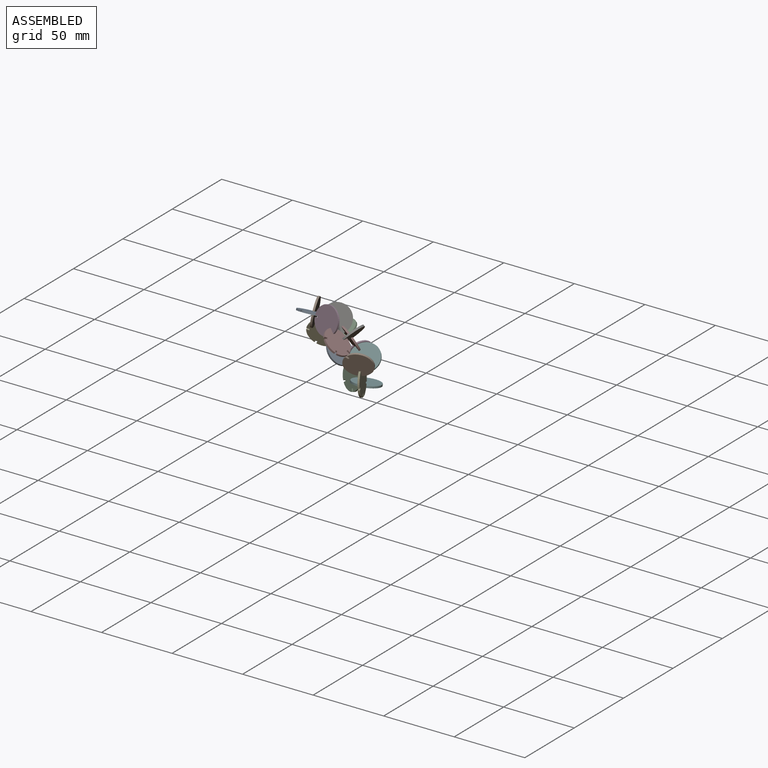
[diagram: assembled view]
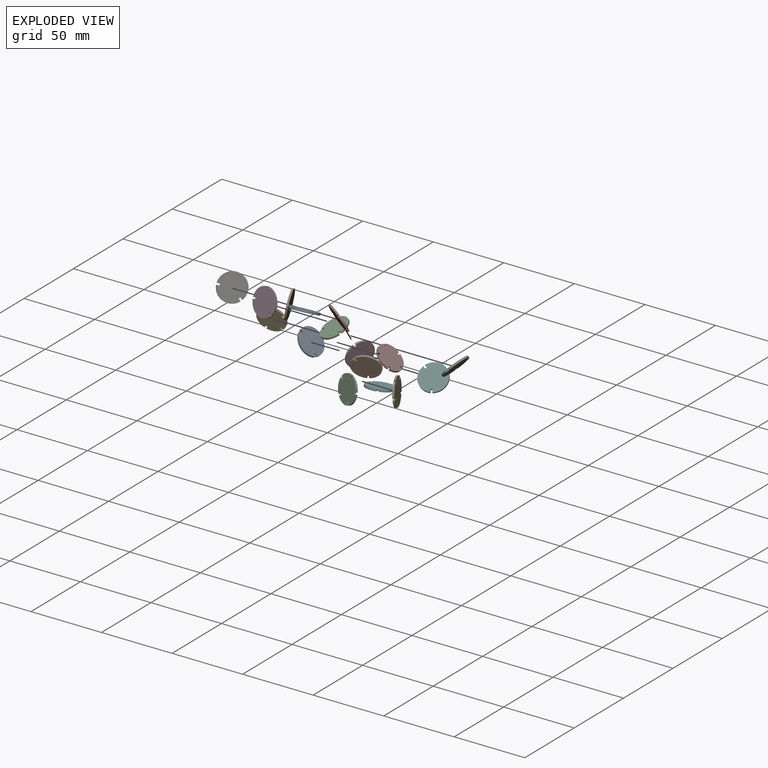
[diagram: exploded view]
GUIDED TOUR — MATED ASSEMBLY (Onshape document 2f8d755c840fef2c85344a46, AutoMate assembly 2f8d755c840fef2c85344a46_6ec1428fb7d1c9a13b4b133c_8fbc645c9785d27caae348df_default)

This assembly has 16 components, labeled P0..P15 below (a component is one placed occurrence of a part; the same part can appear more than once), held together by 3 mates. A mate is a constraint between two components; its type names the relative motion it leaves free:
  FASTENED — locks the two components together rigidly (no relative motion).
Axis/direction vectors are unit vectors and 'through' points are millimeter coordinates, both in the assembly's world frame.

MATES
  1. FASTENED "Fastened 1": P10 <-> P3, direction (0.285, 0.087, 0.955) through (28.39, -11.25, 0.03) mm
  2. FASTENED "Fastened 2": P3 <-> P7, direction (-0.047, -0.535, 0.844) through (30.17, -14.59, 13.46) mm
  3. FASTENED "Fastened 3": P10 <-> P5, direction (0.921, -0.380, 0.084) through (33.15, -14.74, -6.48) mm

ASSEMBLY ORDER
  1. P7 — the base component [order heuristic]
  2. P0 — core [order heuristic]
  3. P1 — core [order heuristic]
  4. P2 — core [order heuristic]
  5. P4 — core [order heuristic]
  6. P6 — core [order heuristic]
  7. P8 — core [order heuristic]
  8. P9 — core [order heuristic]
  9. P11 — core [order heuristic]
  10. P12 — core [order heuristic]
  11. P13 — core [order heuristic]
  12. P14 — core [order heuristic]
  13. P15 — core [order heuristic]
  14. P3 [order verified]
  15. P10 [order verified]
  16. P5 [order verified]
(P3, P10 verified with a relaxed clearance tolerance: the source model stores slight part interference there.)
Order-tag legend:
  [order verified] — this step's position reverses a verified removal order: the component was checked to insert without passing through the ones already placed.
  [order heuristic] — the first 13 components form the assembly's core: parts whose collision-free extraction could not be verified, listed in mate-graph order.

Of the 16 components, 16 carry the full construction recipe — the FeatureScript program that regenerates the part's solid from scratch; the rest are supplied as boundary geometry only.
Because this assembly has more than 12 components, the tour below covers the 12 most significant ones individually (every recipe-attached component first, then the largest by part volume), in assembly order; the remaining 4 are summarized together in a grouped section at the end.
Each toured component is shown spotlighted twice — in the assembled view, then in the exploded view, where a leader line traces a displaced component back to its assembled socket (saturated green if recipe-attached, orange if geometry-only; every other component desaturated gray) — followed by its recipe or geometry summary and the mates that hold it.
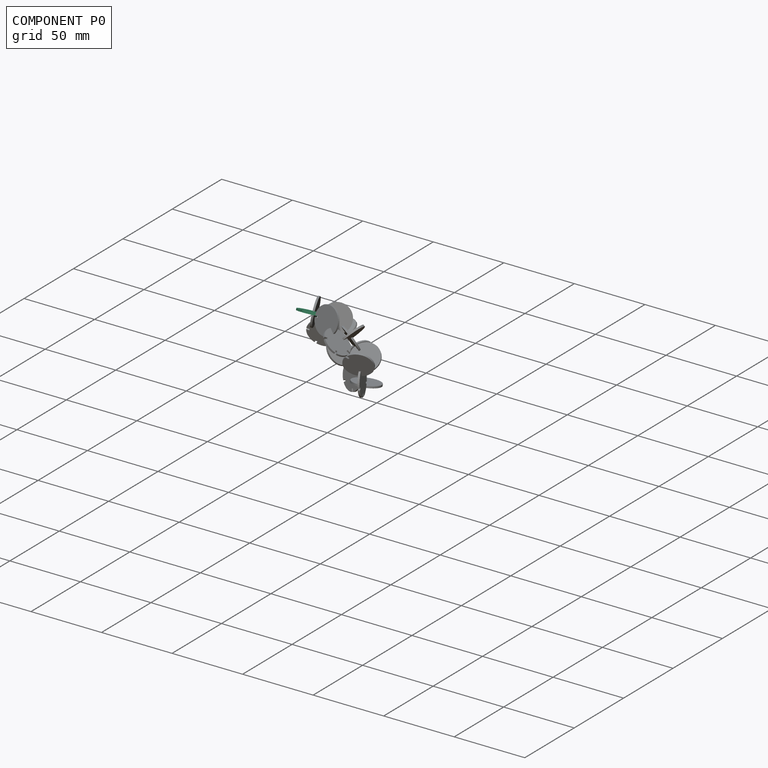
[diagram: component P0 — assembled]
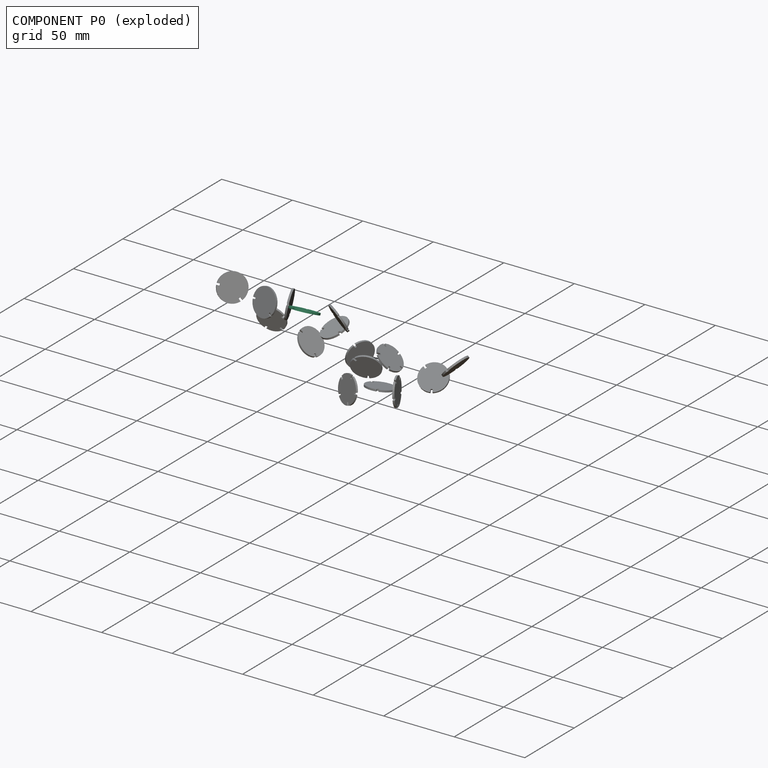
[diagram: component P0 — exploded]
COMPONENT P0 — recipe-attached (CADFS 00611529, mesh-verified: the recipe's output STEP matches this component's geometry to below the mesh-comparison resolution (tessellation chordal tolerance ~0.0404 mm)).
Held by: no mates (free).
Construction recipe (FeatureScript — the CAD program that rebuilds this solid; sketch coordinates are in the units given by the * unit suffixes, e.g. mm):

FeatureScript 1511;
import(path : "onshape/std/geometry.fs", version : "1511.0");
import(path : "onshape/std/common.fs", version : "1511.0");
const mm = millimeter;
const VERTEX = EntityType.VERTEX;
const EDGE = EntityType.EDGE;
const FACE = EntityType.FACE;
const BODY = EntityType.BODY;
function v(x, y){return vector(x, y);}
function OD(order){return orderDisambiguation(order);}
function OSD(set){return originalSetDisambiguation(set);}
function TD(topology){return topologyDisambiguation(topology);}
function TDD(query){return trueDependencyDisambiguation(query);}
function sQuery(a, b, c) {return sketchEntityQuery(a, b, c);}

annotation { "Feature Type Name" : "Feature", "Feature Type Description" : "" }
export const myFeature = defineFeature(function(context is Context, id is Id, definition is map)
    precondition{}
    {
        {
            var Q0;
            Q0=qCreatedBy(makeId("Front.planeOp"),FACE);
            var sketch = newSketch(context, id + "F0", { "sketchPlane" : qUnion([Q0])});
            skArc(sketch, "E0", {"start": v(-0.64, 9.5) * mm, "mid": v(-5.6, 7.7) * mm, "end": v(-8.84, 3.54) * mm});
            skLineSegment(sketch, "E1.top", {"start": v(-0.64, 7.47) * mm, "end": v(0.64, 7.47) * mm});
            skLineSegment(sketch, "E1.left", {"start": v(-0.64, 9.5) * mm, "end": v(-0.64, 7.47) * mm});
            skLineSegment(sketch, "E1.right", {"start": v(0.64, 9.5) * mm, "end": v(0.64, 7.47) * mm});
            skLineSegment(sketch, "E2.1.0", {"start": v(-8.84, 3.54) * mm, "end": v(-6.9, 2.91) * mm});
            skLineSegment(sketch, "E2.1.1", {"start": v(-7.3, 1.7) * mm, "end": v(-6.9, 2.91) * mm});
            skLineSegment(sketch, "E2.1.2", {"start": v(-9.23, 2.33) * mm, "end": v(-7.3, 1.7) * mm});
            skLineSegment(sketch, "E2.2.0", {"start": v(-6.1, -7.32) * mm, "end": v(-4.9, -5.67) * mm});
            skLineSegment(sketch, "E2.2.1", {"start": v(-3.88, -6.42) * mm, "end": v(-4.9, -5.67) * mm});
            skLineSegment(sketch, "E2.2.2", {"start": v(-5.07, -8.06) * mm, "end": v(-3.88, -6.42) * mm});
            skLineSegment(sketch, "E2.3.0", {"start": v(5.07, -8.06) * mm, "end": v(3.88, -6.42) * mm});
            skLineSegment(sketch, "E2.3.1", {"start": v(4.9, -5.67) * mm, "end": v(3.88, -6.42) * mm});
            skLineSegment(sketch, "E2.3.2", {"start": v(6.1, -7.32) * mm, "end": v(4.9, -5.67) * mm});
            skLineSegment(sketch, "E2.4.0", {"start": v(9.23, 2.33) * mm, "end": v(7.3, 1.7) * mm});
            skLineSegment(sketch, "E2.4.1", {"start": v(6.9, 2.91) * mm, "end": v(7.3, 1.7) * mm});
            skLineSegment(sketch, "E2.4.2", {"start": v(8.84, 3.54) * mm, "end": v(6.9, 2.91) * mm});
            skArc(sketch, "E3.trimOffspring", {"start": v(8.84, 3.54) * mm, "mid": v(5.6, 7.7) * mm, "end": v(0.63, 9.5) * mm});
            skArc(sketch, "E4.trimOffspring", {"start": v(6.1, -7.32) * mm, "mid": v(9.06, -2.94) * mm, "end": v(9.23, 2.33) * mm});
            skArc(sketch, "E5.trimOffspring", {"start": v(-5.07, -8.06) * mm, "mid": v(0, -9.53) * mm, "end": v(5.07, -8.06) * mm});
            skArc(sketch, "E6.trimOffspring", {"start": v(-9.23, 2.33) * mm, "mid": v(-9.06, -2.94) * mm, "end": v(-6.1, -7.32) * mm});
            skSolve(sketch);
        }
        {
            var Q0;
            Q0=makeQuery(id+"F0.imprint","IMPRINT",FACE,{"disambiguationData":[TD([[makeQuery(id+"F0.imprint","IMPRINT",EDGE,{"derivedFrom":sQuery(id+"F0.wireOp",EDGE,"E0")}),1.0]])]});
            extrude(context, id + "F1", {"entities" : qUnion([Q0]), "endBound" : BoundingType.SYMMETRIC, "depth" : 1.27 * mm, "offsetDistance" : 25.4 * mm});
        }
    });
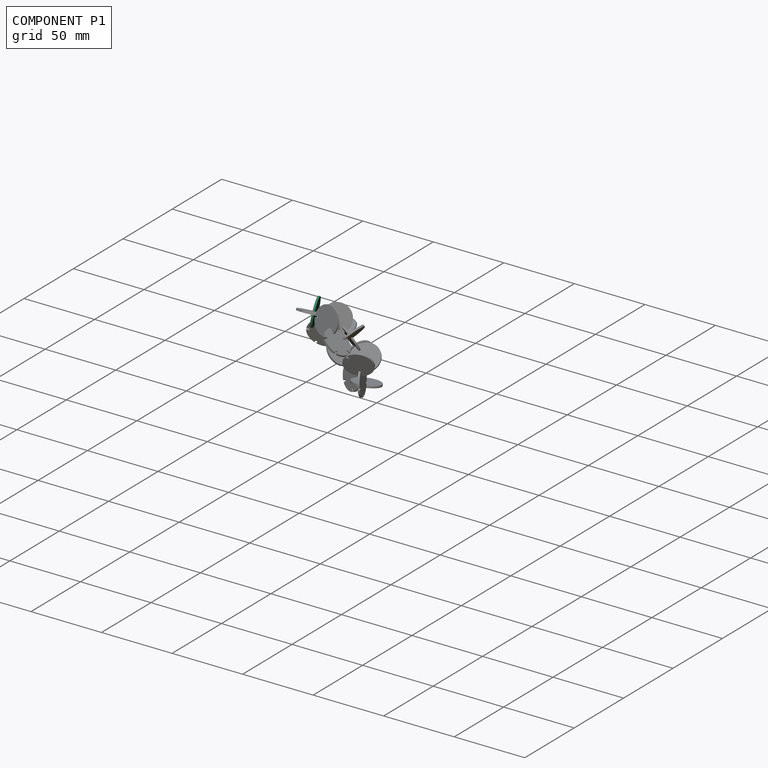
[diagram: component P1 — assembled]
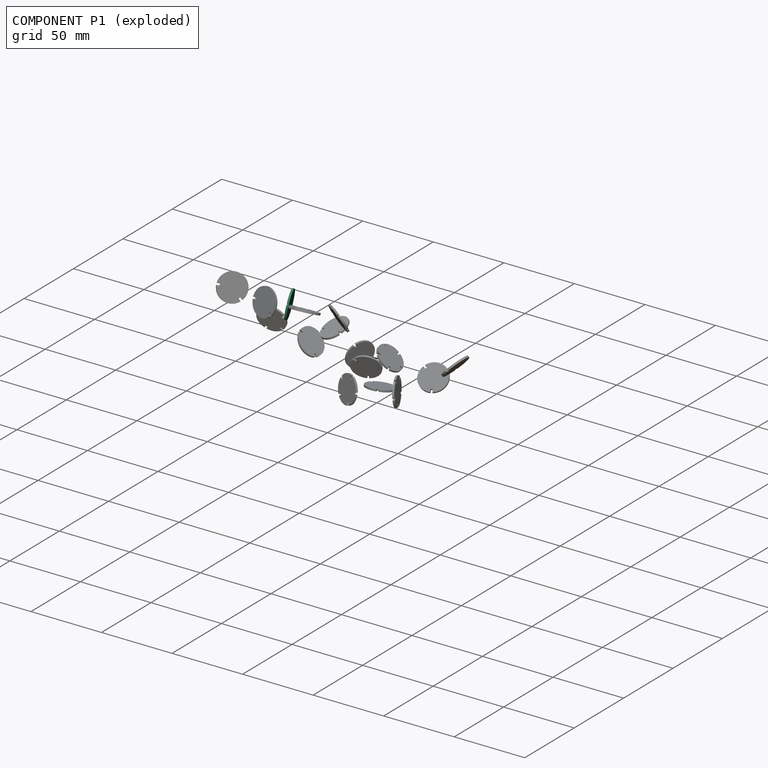
[diagram: component P1 — exploded]
COMPONENT P1 — recipe-attached (CADFS 00611528, mesh-verified: the recipe's output STEP matches this component's geometry to below the mesh-comparison resolution (tessellation chordal tolerance ~0.0404 mm)).
Held by: no mates (free).
Construction recipe (FeatureScript — the CAD program that rebuilds this solid; sketch coordinates are in the units given by the * unit suffixes, e.g. mm):

FeatureScript 1511;
import(path : "onshape/std/geometry.fs", version : "1511.0");
import(path : "onshape/std/common.fs", version : "1511.0");
const mm = millimeter;
const VERTEX = EntityType.VERTEX;
const EDGE = EntityType.EDGE;
const FACE = EntityType.FACE;
const BODY = EntityType.BODY;
function v(x, y){return vector(x, y);}
function OD(order){return orderDisambiguation(order);}
function OSD(set){return originalSetDisambiguation(set);}
function TD(topology){return topologyDisambiguation(topology);}
function TDD(query){return trueDependencyDisambiguation(query);}
function sQuery(a, b, c) {return sketchEntityQuery(a, b, c);}

annotation { "Feature Type Name" : "Feature", "Feature Type Description" : "" }
export const myFeature = defineFeature(function(context is Context, id is Id, definition is map)
    precondition{}
    {
        {
            var Q0;
            Q0=qCreatedBy(makeId("Front.planeOp"),FACE);
            var sketch = newSketch(context, id + "F0", { "sketchPlane" : qUnion([Q0])});
            skArc(sketch, "E0", {"start": v(6.8, -6.66) * mm, "mid": v(8.9, 3.4) * mm, "end": v(0.64, 9.5) * mm});
            skLineSegment(sketch, "E1.top", {"start": v(-0.64, 7.47) * mm, "end": v(0.64, 7.47) * mm});
            skLineSegment(sketch, "E1.left", {"start": v(-0.64, 9.5) * mm, "end": v(-0.64, 7.47) * mm});
            skLineSegment(sketch, "E1.right", {"start": v(0.64, 9.5) * mm, "end": v(0.64, 7.47) * mm});
            skLineSegment(sketch, "E2.1.0", {"start": v(5.86, -7.5) * mm, "end": v(4.5, -6) * mm});
            skLineSegment(sketch, "E2.1.1", {"start": v(5.45, -5.15) * mm, "end": v(4.5, -6) * mm});
            skLineSegment(sketch, "E2.1.2", {"start": v(6.8, -6.66) * mm, "end": v(5.45, -5.15) * mm});
            skLineSegment(sketch, "E2.anchor1", {"start": v(0, 0) * mm, "end": v(0.63, 7.47) * mm, "construction": true});
            skLineSegment(sketch, "E2.anchor2", {"start": v(0, 0) * mm, "end": v(4.5, -6) * mm, "construction": true});
            skArc(sketch, "E3.trimOffspring", {"start": v(-0.63, 9.5) * mm, "mid": v(-8.9, -3.4) * mm, "end": v(5.86, -7.5) * mm});
            skSolve(sketch);
        }
        {
            var Q0;
            Q0 = qSketchRegion(id + "F0", true);
            extrude(context, id + "F1", {"entities" : qUnion([Q0]), "endBound" : BoundingType.SYMMETRIC, "depth" : 1.27 * mm, "offsetDistance" : 25.4 * mm});
        }
    });
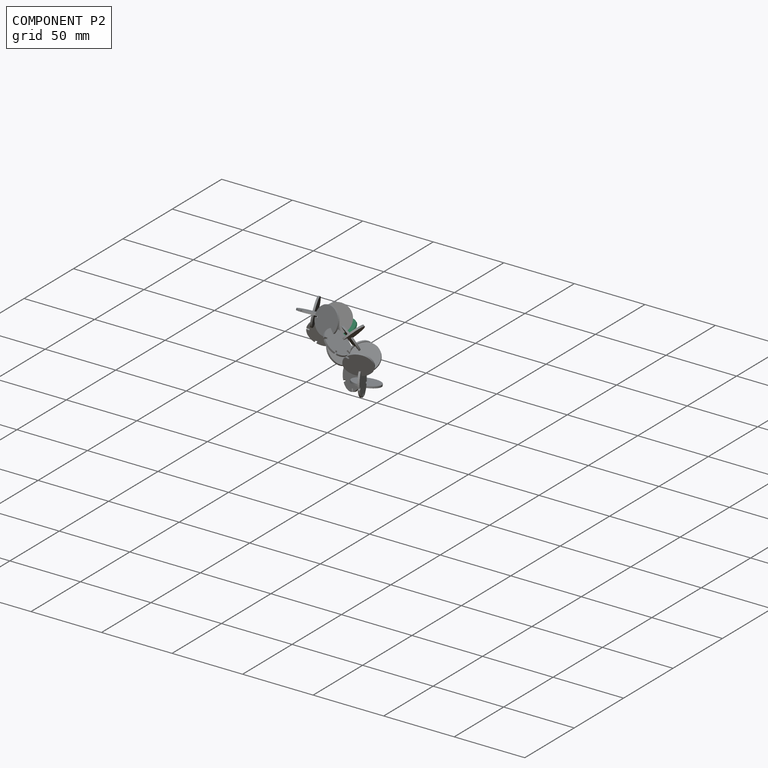
[diagram: component P2 — assembled]
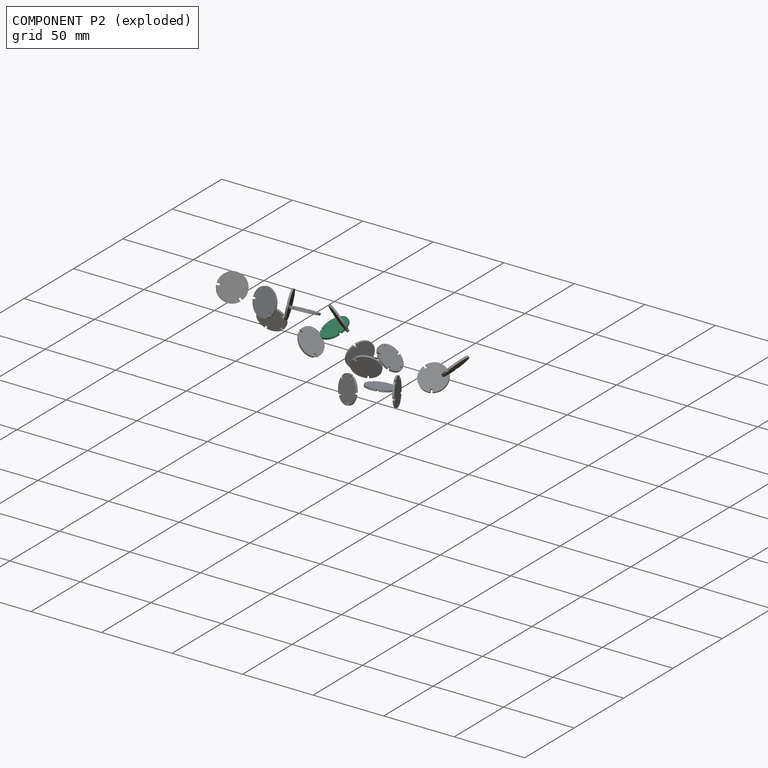
[diagram: component P2 — exploded]
COMPONENT P2 — same part as P1 (CADFS 00611528); its construction recipe is shown at P1.
Held by: no mates (free).
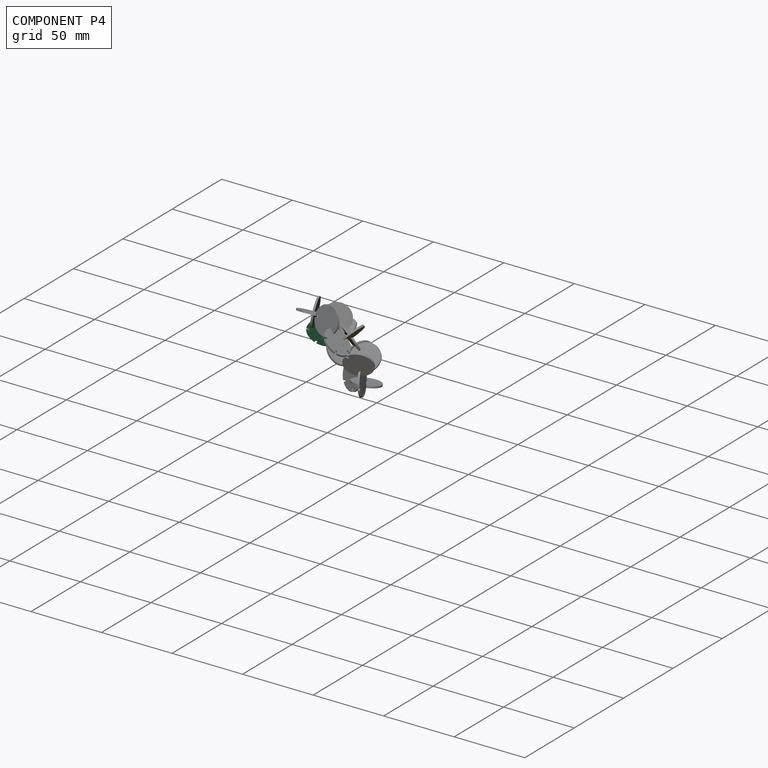
[diagram: component P4 — assembled]
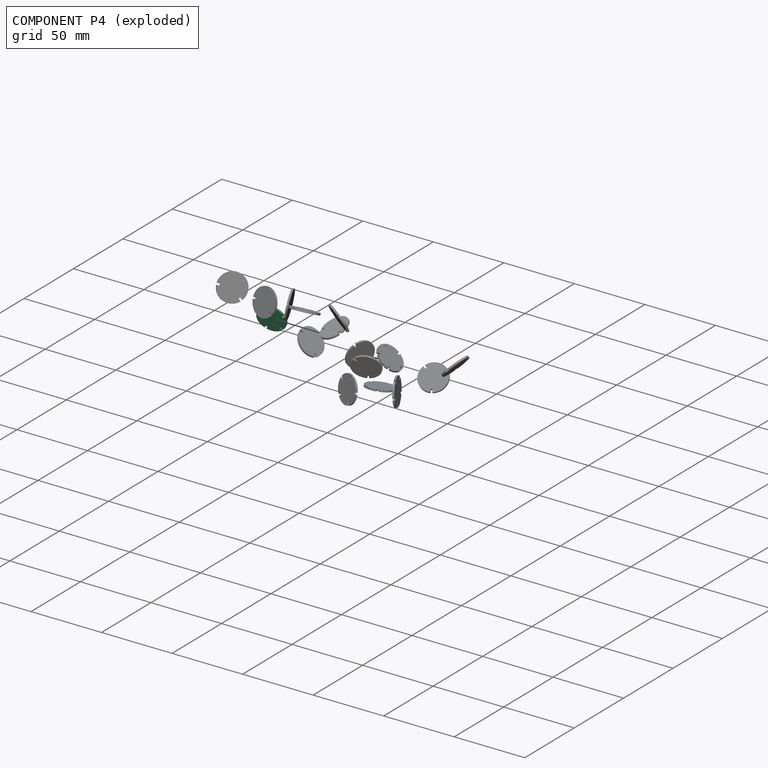
[diagram: component P4 — exploded]
COMPONENT P4 — same part as P0 (CADFS 00611529); its construction recipe is shown at P0.
Held by: no mates (free).
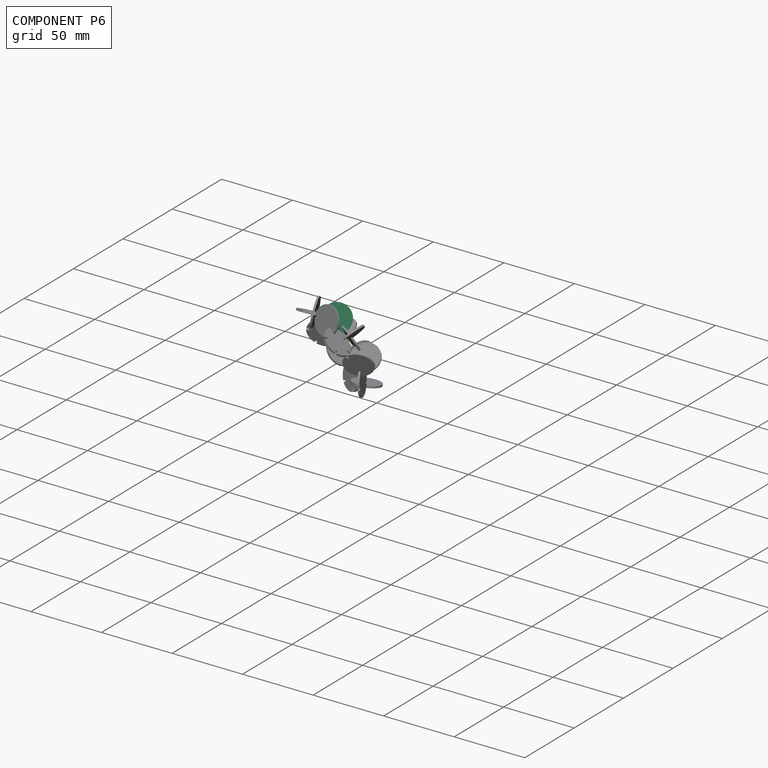
[diagram: component P6 — assembled]
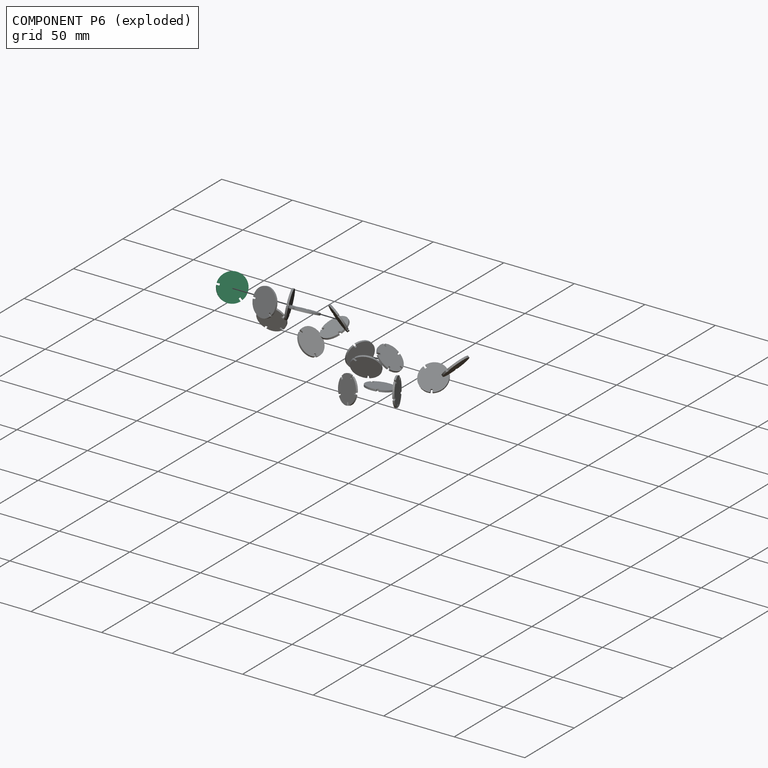
[diagram: component P6 — exploded]
COMPONENT P6 — same part as P1 (CADFS 00611528); its construction recipe is shown at P1.
Held by: no mates (free).
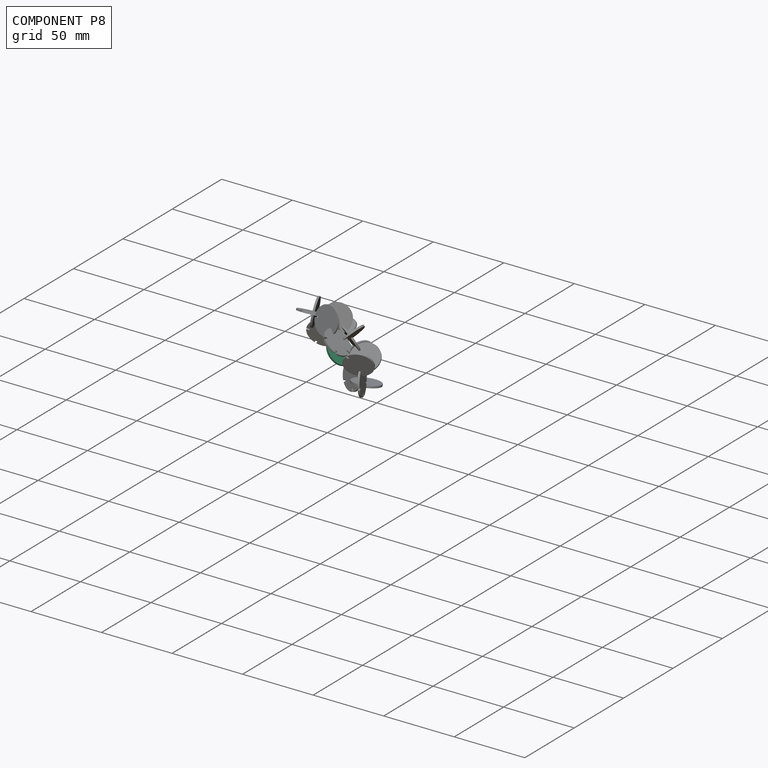
[diagram: component P8 — assembled]
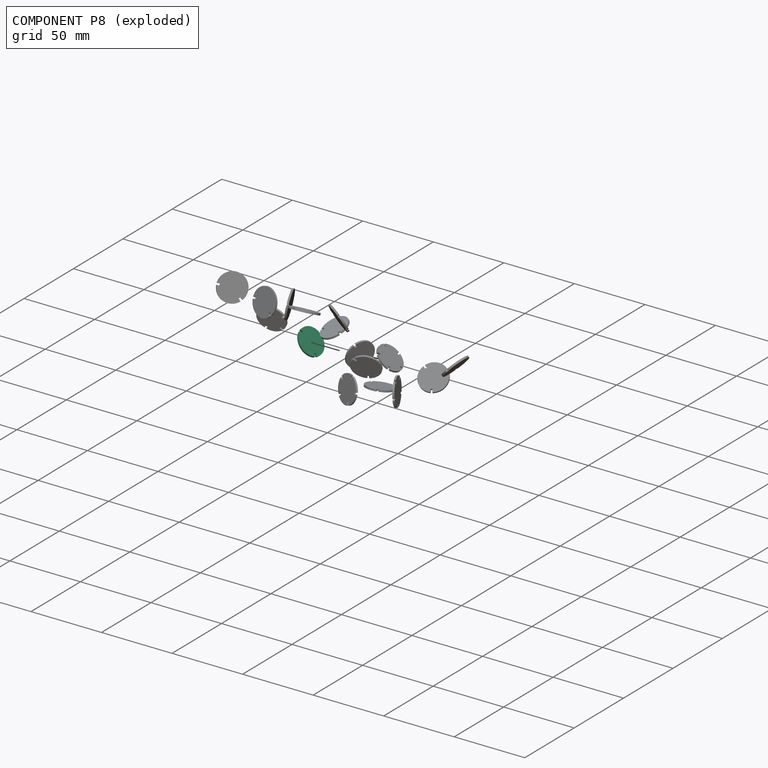
[diagram: component P8 — exploded]
COMPONENT P8 — same part as P1 (CADFS 00611528); its construction recipe is shown at P1.
Held by: no mates (free).
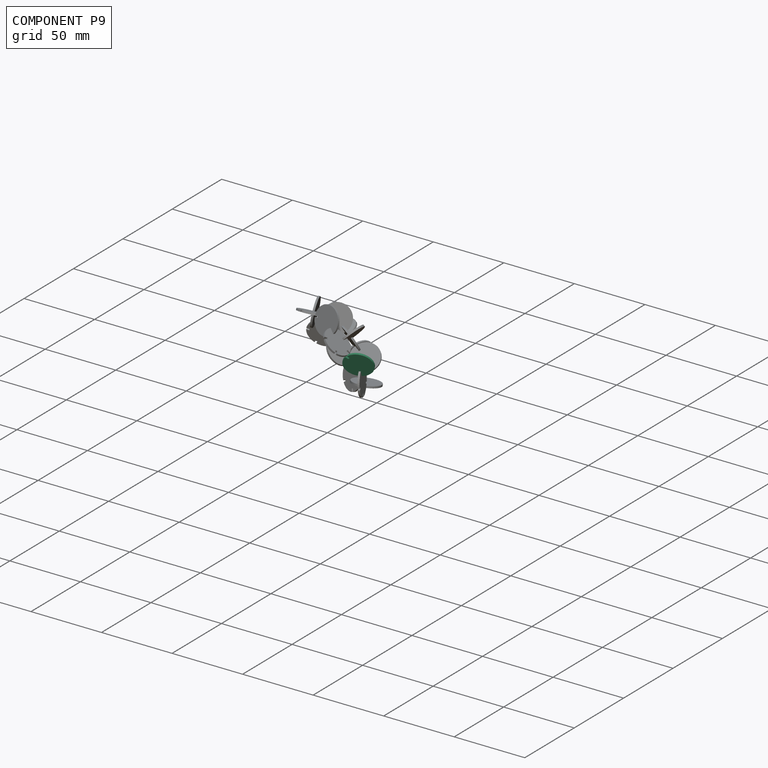
[diagram: component P9 — assembled]
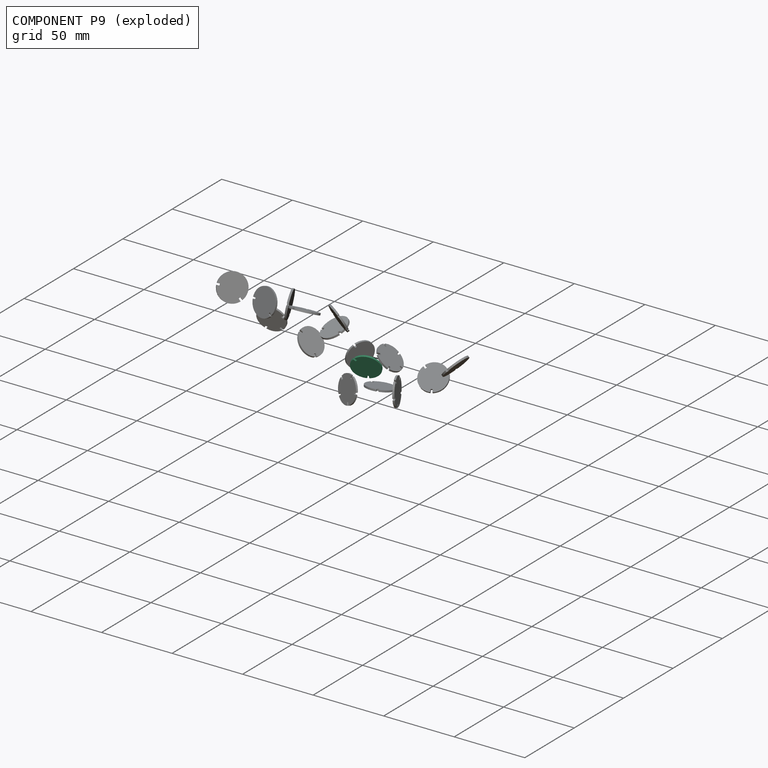
[diagram: component P9 — exploded]
COMPONENT P9 — same part as P1 (CADFS 00611528); its construction recipe is shown at P1.
Held by: no mates (free).
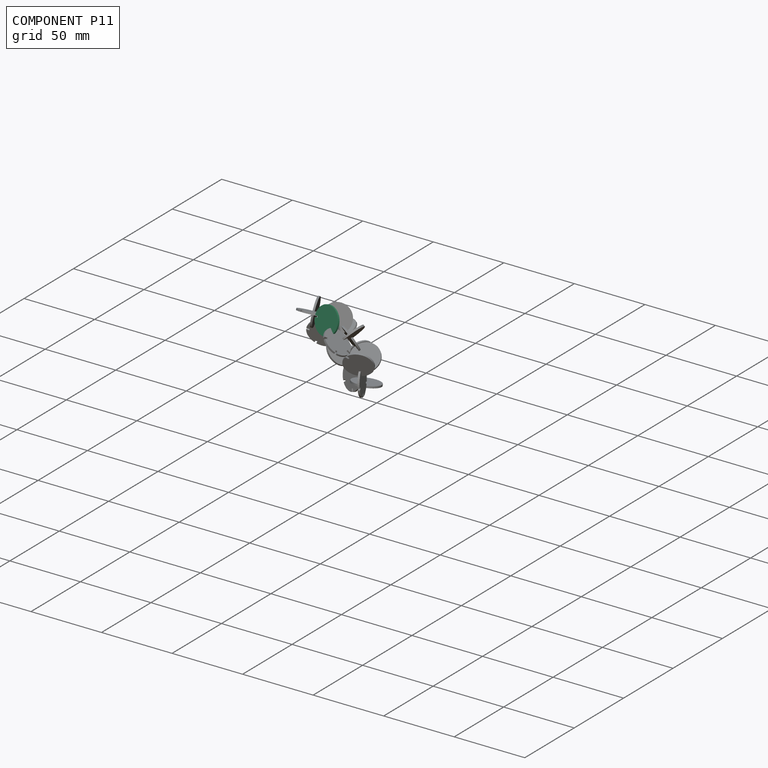
[diagram: component P11 — assembled]
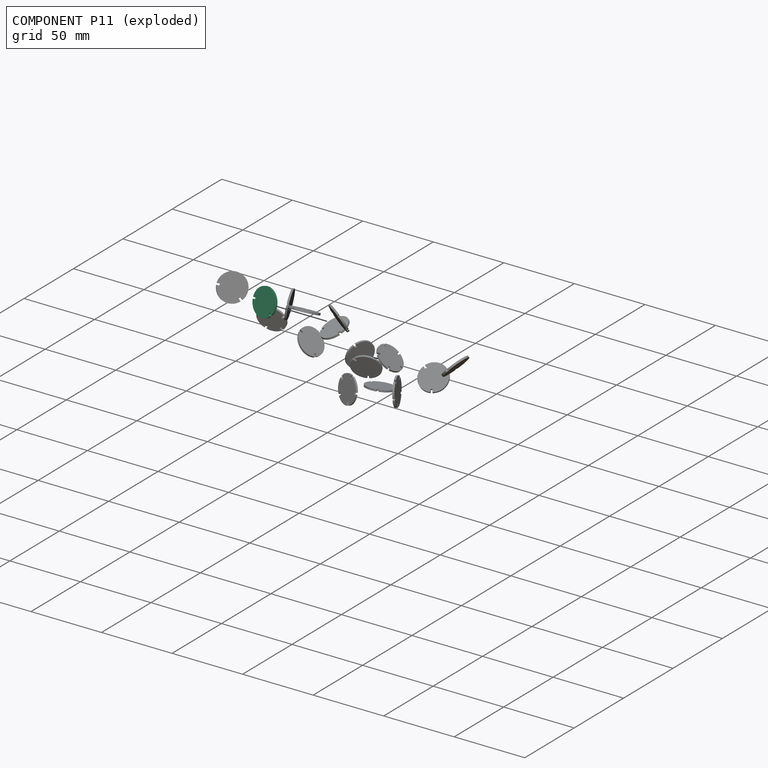
[diagram: component P11 — exploded]
COMPONENT P11 — same part as P1 (CADFS 00611528); its construction recipe is shown at P1.
Held by: no mates (free).
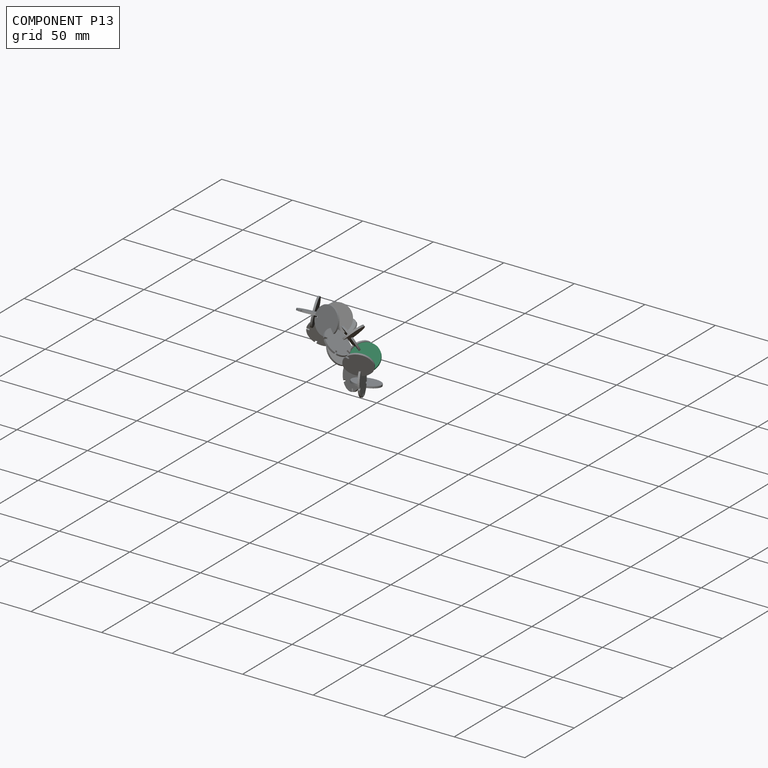
[diagram: component P13 — assembled]
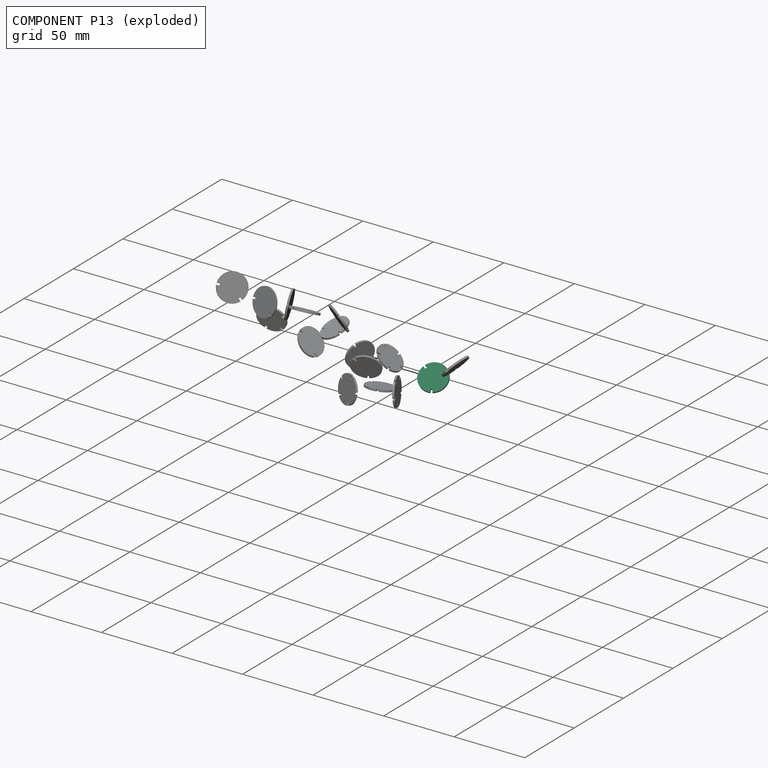
[diagram: component P13 — exploded]
COMPONENT P13 — same part as P1 (CADFS 00611528); its construction recipe is shown at P1.
Held by: no mates (free).
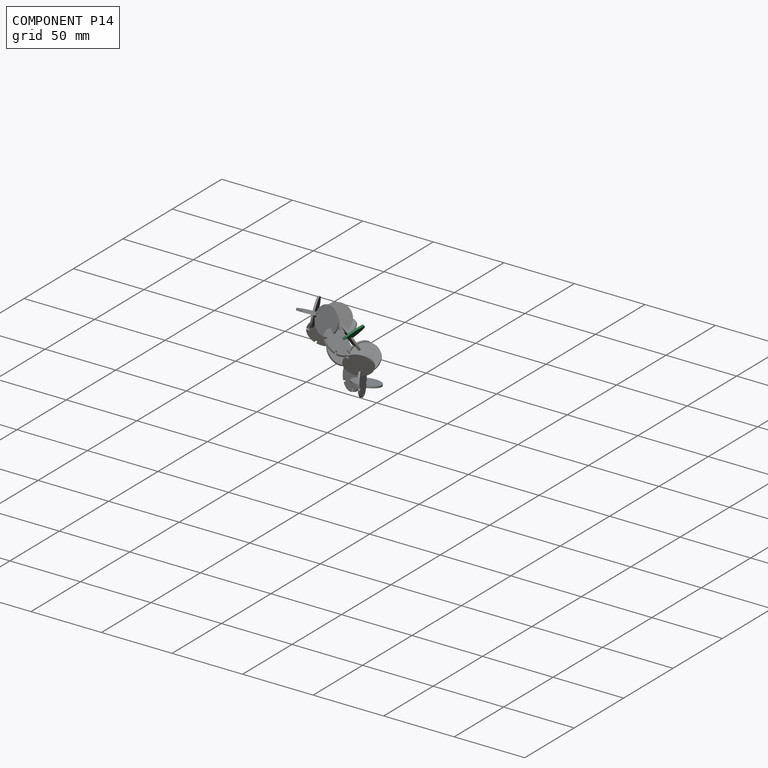
[diagram: component P14 — assembled]
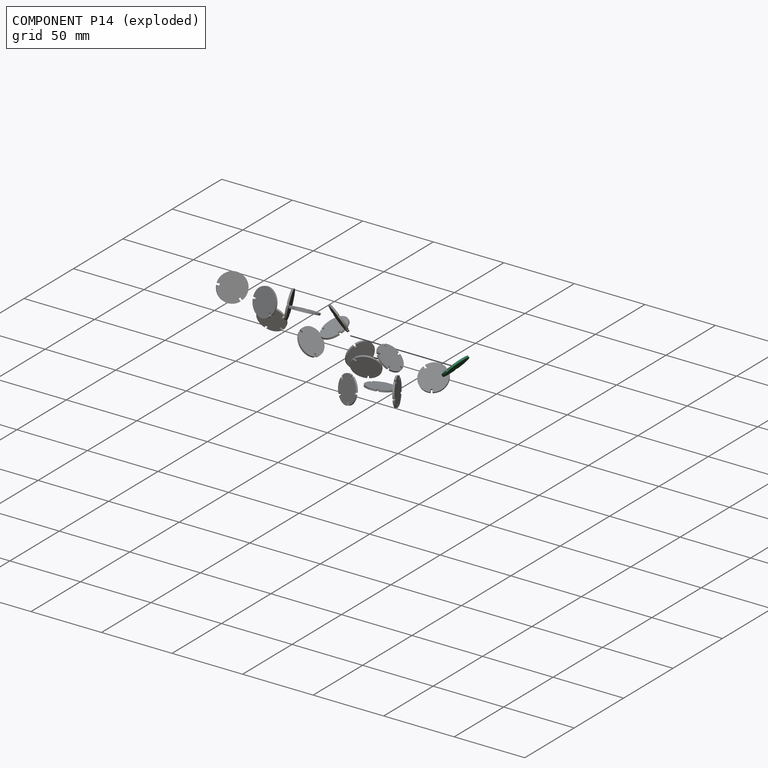
[diagram: component P14 — exploded]
COMPONENT P14 — same part as P1 (CADFS 00611528); its construction recipe is shown at P1.
Held by: no mates (free).
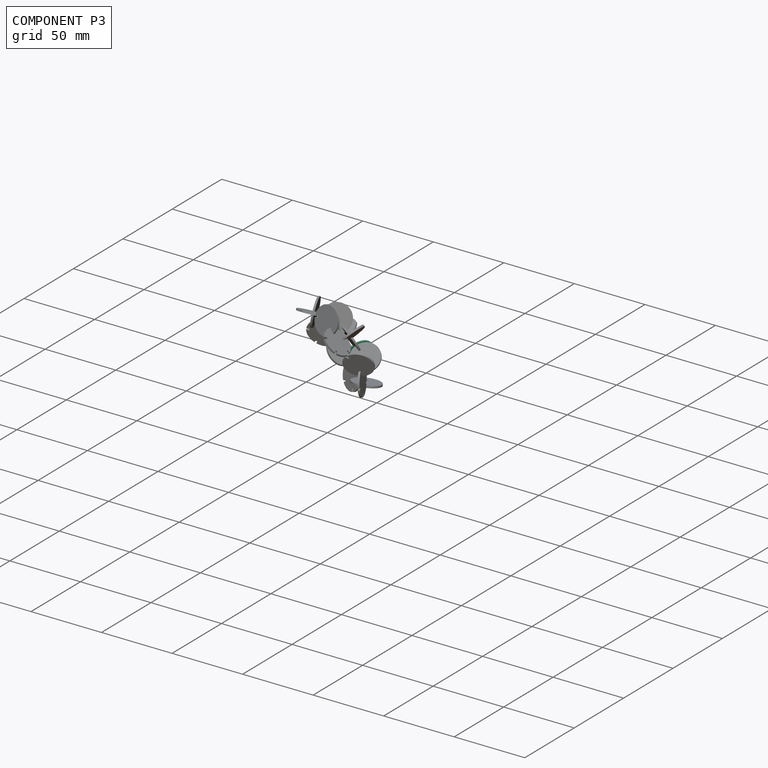
[diagram: component P3 — assembled]
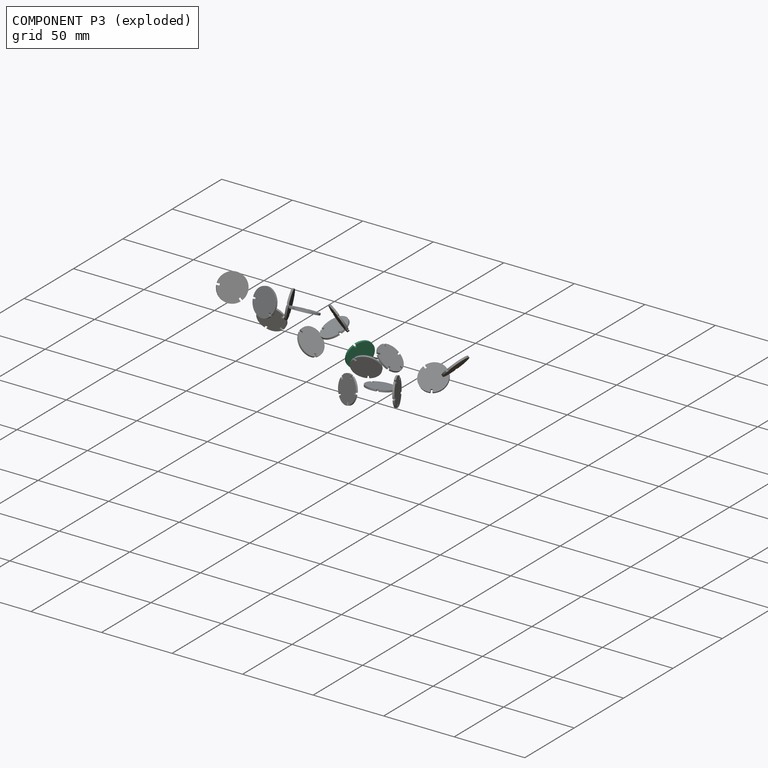
[diagram: component P3 — exploded]
COMPONENT P3 — same part as P1 (CADFS 00611528); its construction recipe is shown at P1.
Held by: FASTENED mate "Fastened 1" to P10; FASTENED mate "Fastened 2" to P7.
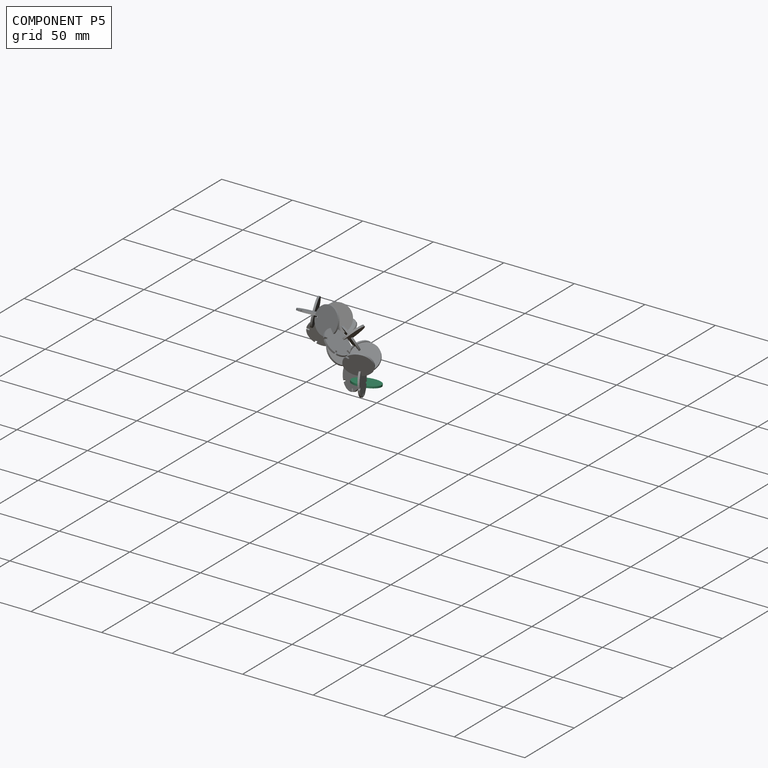
[diagram: component P5 — assembled]
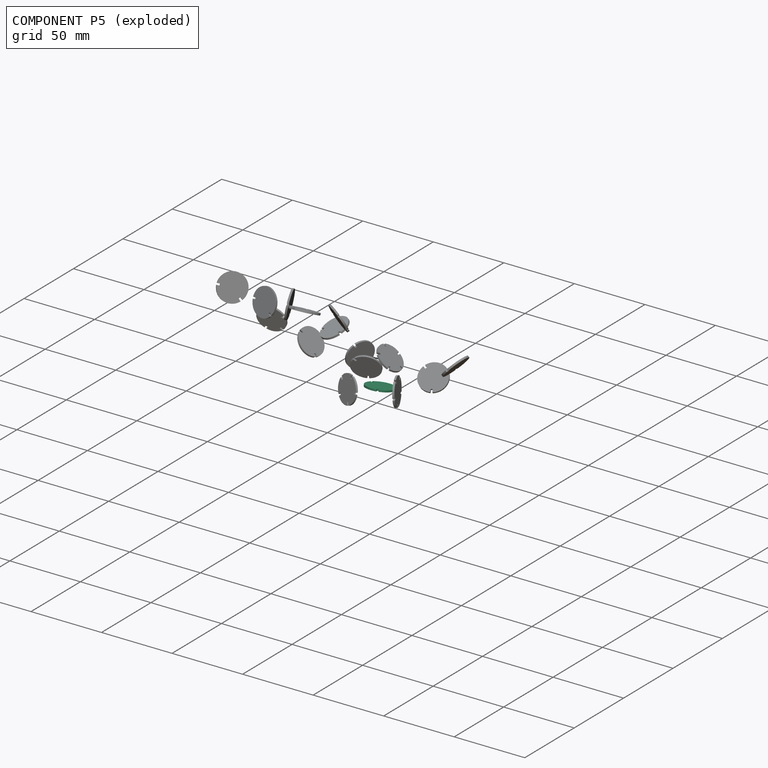
[diagram: component P5 — exploded]
COMPONENT P5 — same part as P1 (CADFS 00611528); its construction recipe is shown at P1.
Held by: FASTENED mate "Fastened 3" to P10.
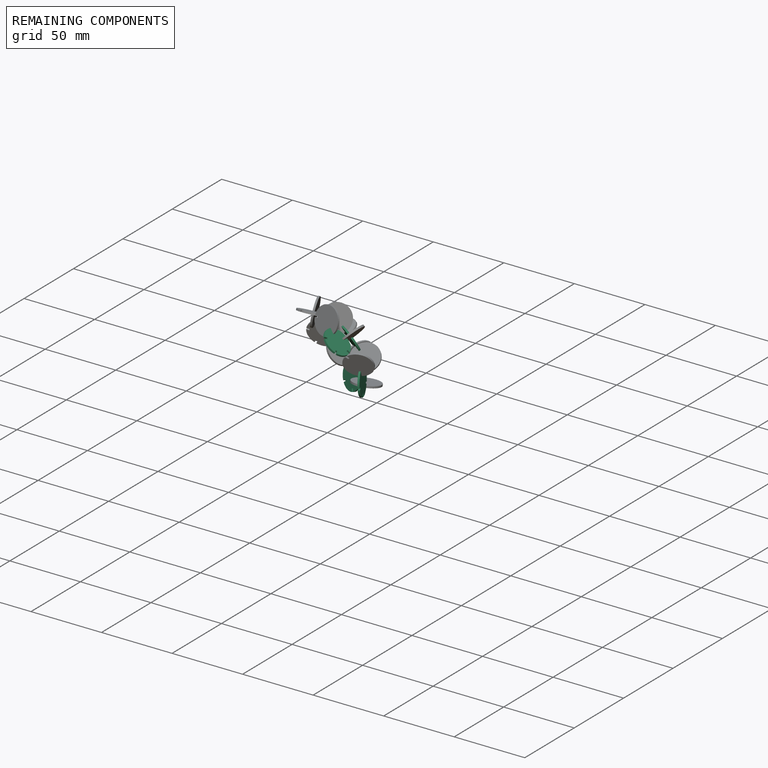
[diagram: remaining components — assembled]
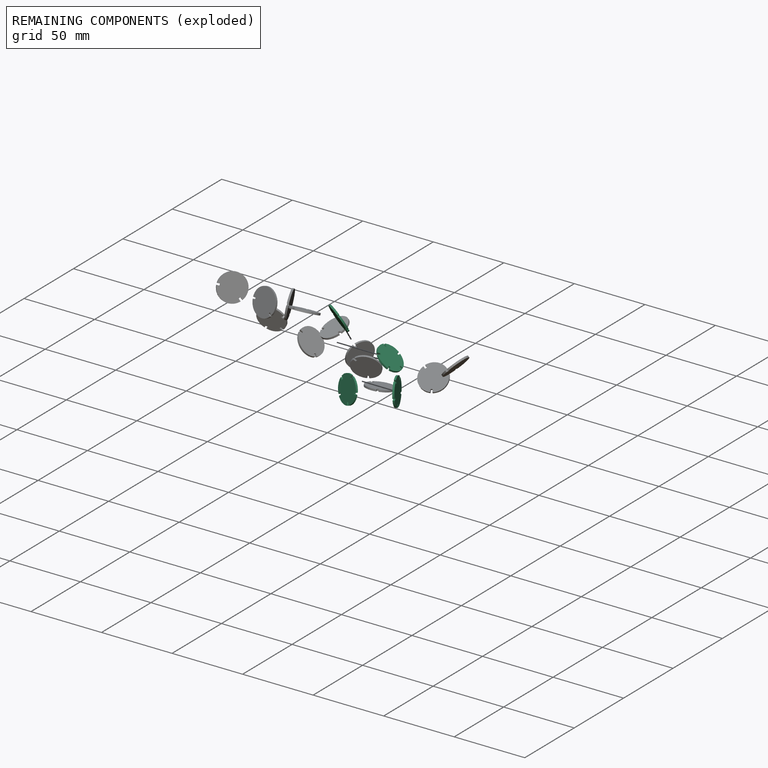
[diagram: remaining components — exploded]
REMAINING COMPONENTS (grouped) — the 4 components below fall outside the per-component tour by the significance rule stated above; both spotlight views highlight the whole group.
  P7: bounding box 19.1 x 19.0 x 1.3 mm, volume 345 mm^3. Recipe-attached (CADFS 00611529; recipe not printed under the significance rule). Held by: FASTENED mate "Fastened 2" to P3.
  P12: bounding box 19.1 x 19.0 x 1.3 mm, volume 345 mm^3. Recipe-attached (CADFS 00611529; recipe not printed under the significance rule). Held by: no mates (free).
  P15: bounding box 19.1 x 19.0 x 1.3 mm, volume 345 mm^3. Recipe-attached (CADFS 00611529; recipe not printed under the significance rule). Held by: no mates (free).
  P10: bounding box 19.1 x 19.0 x 1.3 mm, volume 345 mm^3. Recipe-attached (CADFS 00611529; recipe not printed under the significance rule). Held by: FASTENED mate "Fastened 1" to P3; FASTENED mate "Fastened 3" to P5.
PROVENANCE & LICENSES
Assembly (occurrences, transforms, mates, per-part STEP geometry): AutoMate dataset, Zenodo record 7776208, CC0.
Construction recipes: CADFS (HuggingFace VladPyatov/CADFS, CC-BY-4.0, layered over the ABC dataset), FeatureScript reconstruction programs keyed by ABC model id.
Join: ABC meta listings map ABC model id -> Onshape documentId; within a shared document, parts are matched by geometric signature (bounding-box dims + volume at 0.1% relative tolerance, exact B-rep face/solid counts).
Verification: 16 of this assembly's 16 components carry a recipe attachment, and every attachment is mesh-verified: the CADFS STEP and the AutoMate member STEP were compared as meshes in their shared local frame (symmetric sampled-point-to-mesh distance); worst across the 16 attachments: below the mesh-comparison resolution (tessellation chordal tolerance ~0.0404 mm) on a 27 mm part.
Renders: orthographic iso camera (az 35 / el 25); the floor grid conveys scale (grid pitch printed in each image; no ruler). In the exploded view each component is displaced by its stored offset vector: the offsets alone carry the explosion direction (mate normal/axis signs are not orientation cues and do not encode it), and separation distances are assigned per mate-chain, not proportionally to assembly-order depth.
